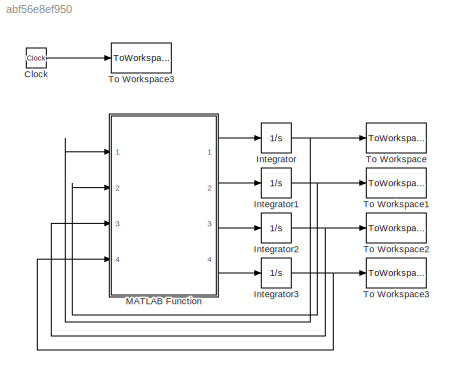
MODEL slx_abf56e8ef950
KIND model
CONFIG AbsTol = auto
CONFIG FixedStep = auto
CONFIG MaxStep = 0.01
CONFIG MinStep = 0.001
CONFIG RelTol = 1e-3
CONFIG SampleTimeConstraint = Unconstrained
CONFIG Solver = ode45
CONFIG SolverMode = Auto
CONFIG SolverName = ode45
CONFIG StartTime = 0.0
CONFIG StopTime = 10.0
BLOCK [Clock] Clock
  Decimation = 1
BLOCK [Integrator] Integrator
  InitialCondition = t10
  Ports = [1, 1]
BLOCK [Integrator] Integrator1
  InitialCondition = t20
  Ports = [1, 1]
BLOCK [Integrator] Integrator2
  InitialCondition = p10
  Ports = [1, 1]
BLOCK [Integrator] Integrator3
  InitialCondition = p20
  Ports = [1, 1]
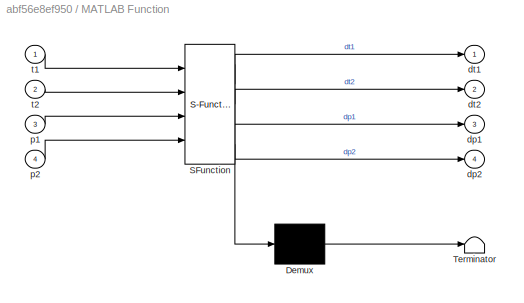
BLOCK [SubSystem] MATLAB Function
  ErrorFcn = Stateflow.Translate.translate
  PermitHierarchicalResolution = ParametersOnly
  Ports = [4, 4]
  RequestExecContextInheritance = off
  SFBlockType = MATLAB Function
  TreatAsAtomicUnit = on
  Variant = off
BLOCK [Demux] MATLAB Function/ Demux 
  Outputs = 1
  Ports = [1, 1]
BLOCK [S-Function] MATLAB Function/ SFunction 
  EnableBusSupport = on
  FunctionName = sf_sfun
  PortCounts = [4 5]
  Ports = [4, 5]
  SFunctionDeploymentMode = off
  Tag = Stateflow S-Function pendulo_2015 2
BLOCK [Terminator] MATLAB Function/ Terminator 
BLOCK [Outport] MATLAB Function/dp1
  IconDisplay = Port number
  Port = 3
BLOCK [Outport] MATLAB Function/dp2
  IconDisplay = Port number
  Port = 4
BLOCK [Outport] MATLAB Function/dt1
  IconDisplay = Port number
BLOCK [Outport] MATLAB Function/dt2
  IconDisplay = Port number
  Port = 2
BLOCK [Inport] MATLAB Function/p1
  IconDisplay = Port number
  Port = 3
BLOCK [Inport] MATLAB Function/p2
  IconDisplay = Port number
  Port = 4
BLOCK [Inport] MATLAB Function/t1
  IconDisplay = Port number
BLOCK [Inport] MATLAB Function/t2
  IconDisplay = Port number
  Port = 2
BLOCK [ToWorkspace] To Workspace
  MaxDataPoints = inf
  Ports = [1]
  SampleTime = -1
  VariableName = t1
BLOCK [ToWorkspace] To Workspace1
  MaxDataPoints = inf
  Ports = [1]
  SampleTime = -1
  VariableName = t2
BLOCK [ToWorkspace] To Workspace2
  MaxDataPoints = inf
  Ports = [1]
  SampleTime = -1
  VariableName = p1
BLOCK [ToWorkspace] To Workspace3
  MaxDataPoints = inf
  Ports = [1]
  SampleTime = -1
  VariableName = p2
BLOCK [ToWorkspace] To Workspace3 
  MaxDataPoints = inf
  Ports = [1]
  SampleTime = -1
  VariableName = t
LINE Clock:1 -> To Workspace3 :1
NET Integrator1:1 -> MATLAB Function:2, To Workspace1:1
NET Integrator2:1 -> MATLAB Function:3, To Workspace2:1
NET Integrator3:1 -> MATLAB Function:4, To Workspace3:1
NET Integrator:1 -> MATLAB Function:1, To Workspace:1
LINE MATLAB Function:1 -> Integrator:1
LINE MATLAB Function:2 -> Integrator1:1
LINE MATLAB Function:3 -> Integrator2:1
LINE MATLAB Function:4 -> Integrator3:1
note: NET lines group one-source signal fan-out (src -> all destinations, sorted); 1:1 wires keep LINE
CHART MATLAB Function states=1 transitions=1
  STATE_LABEL 'eML_blk_kernel()'
  STATE_LABEL 'SCRIPT:\nfunction [dt1,dt2,dp1,dp2] = pendulo(t1,t2,p1,p2)\n\n%Aceleração Gravítica, massa e comprimento do pêndulo.\ng=9.8;\nm=1;\nl=0.5;\n\n%Derivada de Teta1\ndt1=(6/(m*l^2))*(2*p1-3*cos(t1-t2)*p2)/(16-9*cos(t1-t2)^2);\n\n%Derivada de Teta2\ndt2=(6/(m*l^2))*(8*p2-3*cos(t1-t2)*p1)/(16-9*cos(t1-t2)^2);\n\n%Derivada da Velocidade Ângular 1\ndp1=((-1/2)*m*l^2)*(dt1*dt2*sin(t1-t2)+3*(g/l)*sin(t1));\n\n%Derivada da V...<+76ch>'
